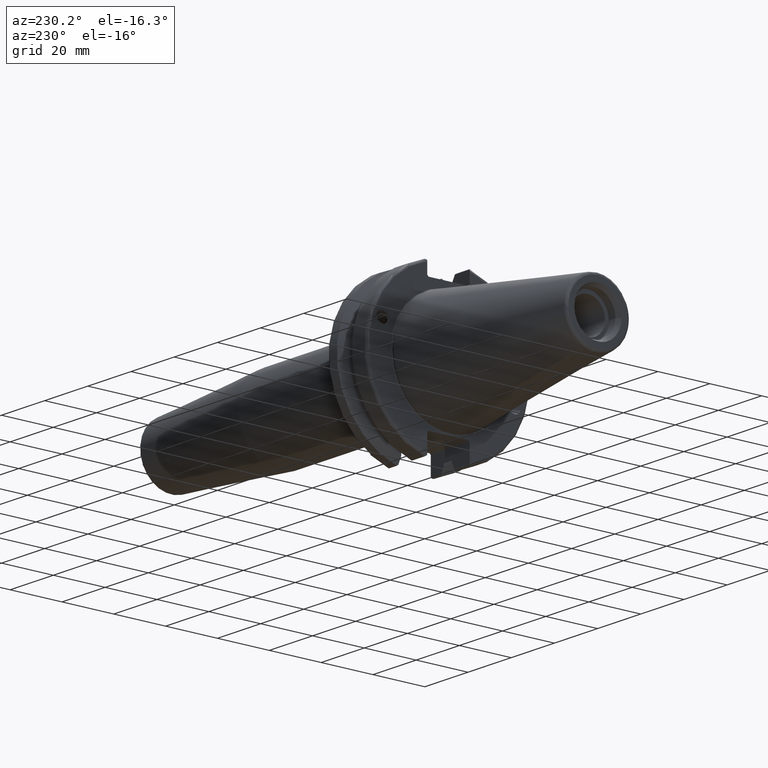
[diagram: clean part render]
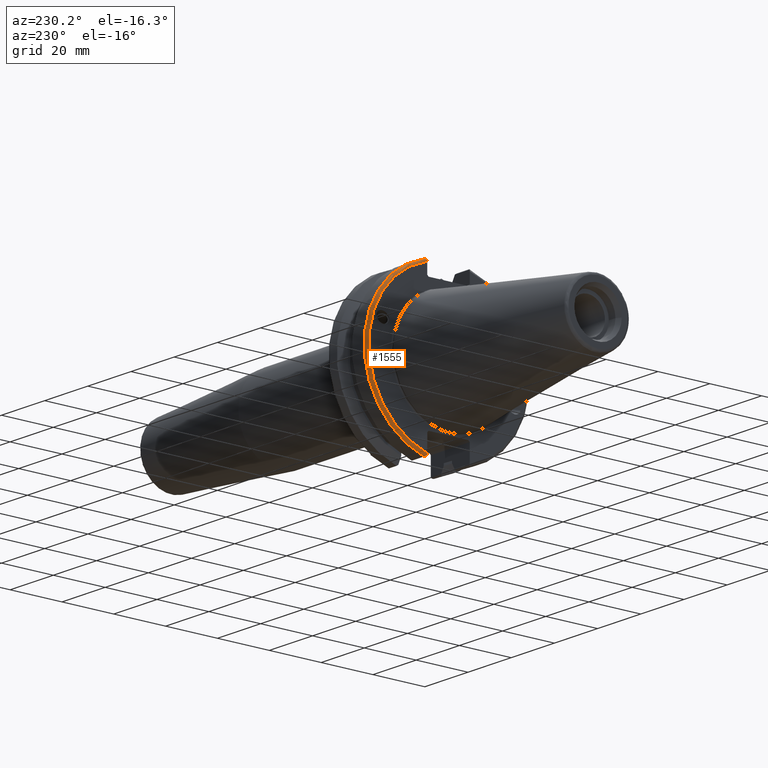
[diagram: same view with one face highlighted and labeled with its STEP entity id]
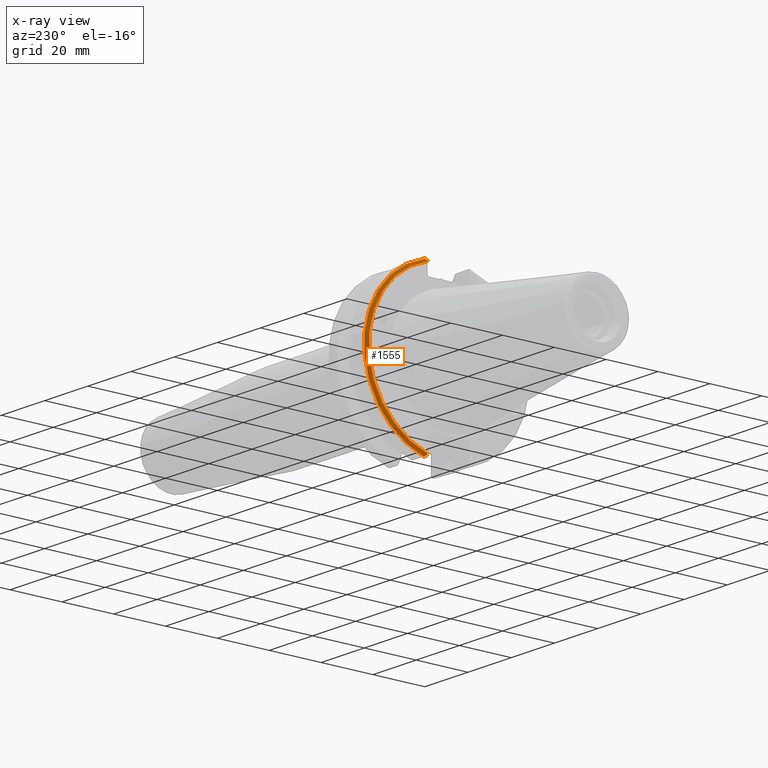
[diagram: x-ray of the same camera — body ghosted, the highlighted face saturated]
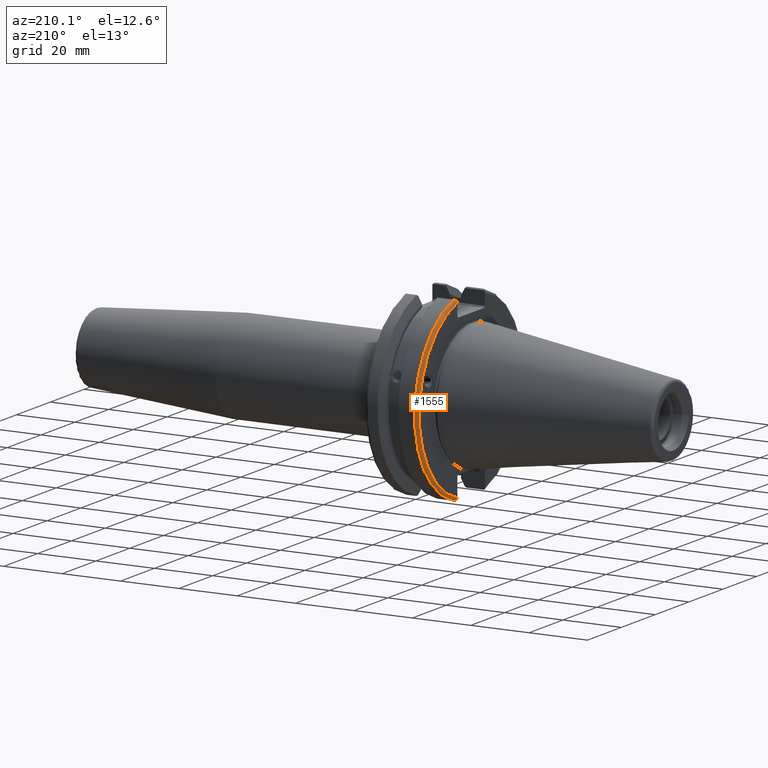
[diagram: same view with one face highlighted and labeled with its STEP entity id]
A machine part, auxiliary view. The second image highlights one B-rep face of the part: STEP entity #1555.
The next image is the same camera in x-ray: the body ghosted, the highlighted face saturated — about 0% of this face is hidden behind the body in this view.
A second angle (auxiliary view) of the same face is appended — the face is thin or edge-on in the first view.
In plain terms, the highlighted toroidal blend (fillet) surface has major radius 30.75 mm and minor (blend) radius 1 mm.
Its self-contained STEP definition (entity closure, byte-faithful):
#51=B_SPLINE_CURVE_WITH_KNOTS('',3,(#2831,#2832,#2833,#2834,#2835,#2836),
 .UNSPECIFIED.,.F.,.F.,(4,2,4),(0.0977210450333169,0.111963554372601,0.150804064902975),
 .UNSPECIFIED.);
#60=B_SPLINE_CURVE_WITH_KNOTS('',3,(#2955,#2956,#2957,#2958,#2959,#2960,
#2961,#2962),.UNSPECIFIED.,.F.,.F.,(4,2,2,4),(-0.104180282751876,-0.0729784742461443,
-0.0343524753874976,0.),.UNSPECIFIED.);
#61=B_SPLINE_CURVE_WITH_KNOTS('',3,(#2965,#2966,#2967,#2968,#2969,#2970,
#2971,#2972),.UNSPECIFIED.,.F.,.F.,(4,2,2,4),(0.,0.0343524753874973,0.0729784742461444,
0.104180282751877),.UNSPECIFIED.);
#62=B_SPLINE_CURVE_WITH_KNOTS('',3,(#2973,#2974,#2975,#2976,#2977,#2978),
 .UNSPECIFIED.,.F.,.F.,(4,2,4),(0.452741510188268,0.491582020718643,0.505824530057928),
 .UNSPECIFIED.);
#124=TOROIDAL_SURFACE('',#1741,30.75,1.);
#230=FACE_OUTER_BOUND('',#333,.T.);
#333=EDGE_LOOP('',(#1338,#1339,#1340,#1341,#1342,#1343));
#605=CIRCLE('',#1726,30.75);
#610=CIRCLE('',#1742,31.75);
#738=VERTEX_POINT('',#2778);
#739=VERTEX_POINT('',#2780);
#748=VERTEX_POINT('',#2830);
#768=VERTEX_POINT('',#2953);
#769=VERTEX_POINT('',#2954);
#770=VERTEX_POINT('',#2963);
#930=EDGE_CURVE('',#739,#738,#605,.T.);
#944=EDGE_CURVE('',#748,#739,#51,.T.);
#976=EDGE_CURVE('',#768,#769,#60,.T.);
#977=EDGE_CURVE('',#769,#770,#610,.T.);
#978=EDGE_CURVE('',#770,#748,#61,.T.);
#979=EDGE_CURVE('',#738,#768,#62,.T.);
#1338=ORIENTED_EDGE('',*,*,#976,.T.);
#1339=ORIENTED_EDGE('',*,*,#977,.T.);
#1340=ORIENTED_EDGE('',*,*,#978,.T.);
#1341=ORIENTED_EDGE('',*,*,#944,.T.);
#1342=ORIENTED_EDGE('',*,*,#930,.T.);
#1343=ORIENTED_EDGE('',*,*,#979,.T.);
#1555=ADVANCED_FACE('',(#230),#124,.T.);
#1726=AXIS2_PLACEMENT_3D('',#2781,#2076,#2077);
#1741=AXIS2_PLACEMENT_3D('',#2952,#2129,#2130);
#1742=AXIS2_PLACEMENT_3D('',#2964,#2131,#2132);
#2076=DIRECTION('center_axis',(1.,0.,0.));
#2077=DIRECTION('ref_axis',(0.,1.,1.60812264967664E-16));
#2129=DIRECTION('center_axis',(1.,0.,0.));
#2130=DIRECTION('ref_axis',(0.,0.,-1.));
#2131=DIRECTION('center_axis',(-1.,0.,0.));
#2132=DIRECTION('ref_axis',(0.,1.,1.60812264967664E-16));
#2778=CARTESIAN_POINT('',(0.999999999999999,8.19,29.6392712461019));
#2780=CARTESIAN_POINT('',(0.999999999999999,8.18999999999999,-29.6392712461019));
#2781=CARTESIAN_POINT('Origin',(0.999999999999999,0.,0.));
#2830=CARTESIAN_POINT('',(1.14412772509028,8.19,-30.1755016258903));
#2831=CARTESIAN_POINT('Ctrl Pts',(1.14412772509028,8.19,-30.1755016258903));
#2832=CARTESIAN_POINT('Ctrl Pts',(1.11818362718666,8.19,-30.131014531546));
#2833=CARTESIAN_POINT('Ctrl Pts',(1.09603565282437,8.19,-30.0852355256475));
#2834=CARTESIAN_POINT('Ctrl Pts',(1.02951443291695,8.19,-29.9212724384851));
#2835=CARTESIAN_POINT('Ctrl Pts',(0.999999999999999,8.19,-29.7687396145364));
#2836=CARTESIAN_POINT('Ctrl Pts',(0.999999999999999,8.19,-29.6392712461019));
#2952=CARTESIAN_POINT('Origin',(2.,0.,0.));
#2953=CARTESIAN_POINT('',(1.14412772509028,8.19,30.1755016258903));
#2954=CARTESIAN_POINT('',(2.,8.67204822802685,30.5427254764662));
#2955=CARTESIAN_POINT('Ctrl Pts',(1.14412772509028,8.19,30.1755016258903));
#2956=CARTESIAN_POINT('Ctrl Pts',(1.19255369570113,8.2703682833078,30.2367261024977));
#2957=CARTESIAN_POINT('Ctrl Pts',(1.25732973376814,8.34909446036477,30.2966996242308));
#2958=CARTESIAN_POINT('Ctrl Pts',(1.41032758094931,8.48862804755883,30.4029961692546));
#2959=CARTESIAN_POINT('Ctrl Pts',(1.53155857052286,8.56482138642532,30.4610401774263));
#2960=CARTESIAN_POINT('Ctrl Pts',(1.75168295662254,8.6471881193939,30.5237870709558));
#2961=CARTESIAN_POINT('Ctrl Pts',(1.88549174870834,8.67204822802685,30.5427254764662));
#2962=CARTESIAN_POINT('Ctrl Pts',(2.,8.67204822802685,30.5427254764662));
#2963=CARTESIAN_POINT('',(2.,8.67204822802685,-30.5427254764662));
#2964=CARTESIAN_POINT('Origin',(2.,0.,0.));
#2965=CARTESIAN_POINT('Ctrl Pts',(2.,8.67204822802686,-30.5427254764662));
#2966=CARTESIAN_POINT('Ctrl Pts',(1.88549174870834,8.67204822802686,-30.5427254764662));
#2967=CARTESIAN_POINT('Ctrl Pts',(1.75168295662254,8.6471881193939,-30.5237870709558));
#2968=CARTESIAN_POINT('Ctrl Pts',(1.53155857052286,8.56482138642533,-30.4610401774263));
#2969=CARTESIAN_POINT('Ctrl Pts',(1.41032758094931,8.48862804755884,-30.4029961692546));
#2970=CARTESIAN_POINT('Ctrl Pts',(1.25732973376814,8.34909446036477,-30.2966996242308));
#2971=CARTESIAN_POINT('Ctrl Pts',(1.19255369570113,8.2703682833078,-30.2367261024977));
#2972=CARTESIAN_POINT('Ctrl Pts',(1.14412772509028,8.18999999999999,-30.1755016258903));
#2973=CARTESIAN_POINT('Ctrl Pts',(0.999999999999999,8.19,29.6392712461019));
#2974=CARTESIAN_POINT('Ctrl Pts',(0.999999999999999,8.19,29.7687396145364));
#2975=CARTESIAN_POINT('Ctrl Pts',(1.02951443291695,8.19,29.9212724384851));
#2976=CARTESIAN_POINT('Ctrl Pts',(1.09603565282437,8.19,30.0852355256475));
#2977=CARTESIAN_POINT('Ctrl Pts',(1.11818362718666,8.19,30.131014531546));
#2978=CARTESIAN_POINT('Ctrl Pts',(1.14412772509028,8.19,30.1755016258903));